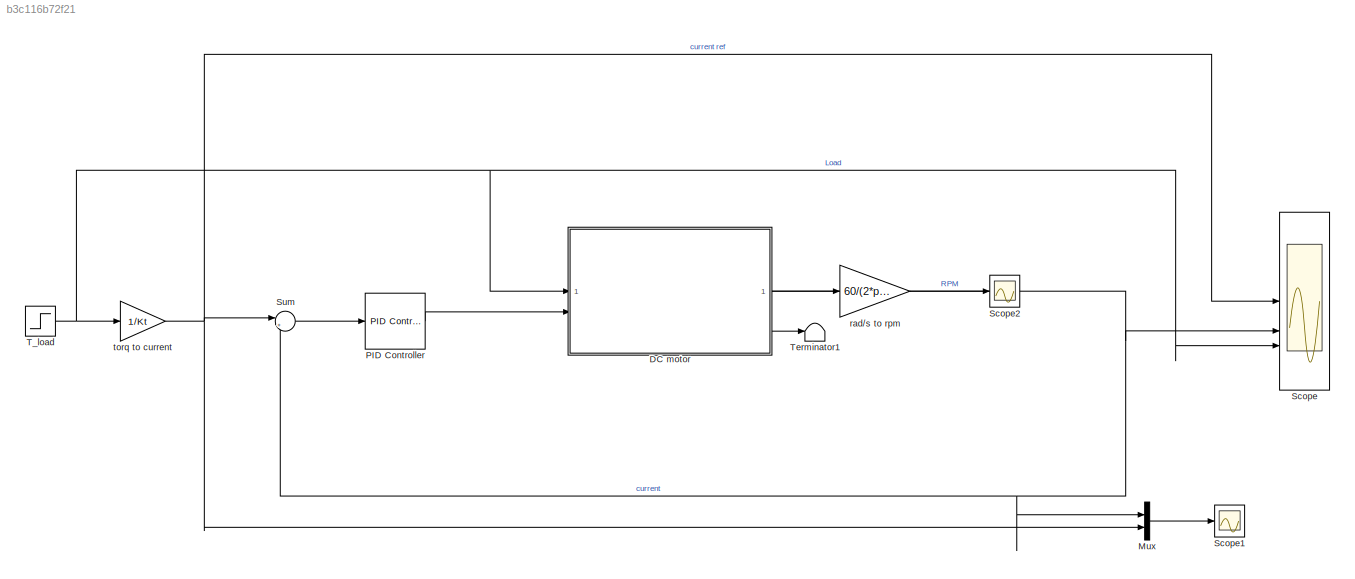
MODEL slx_b3c116b72f21
KIND model
CONFIG AbsTol = auto
CONFIG EnableMultiTasking = off
CONFIG FixedStep = auto
CONFIG MaxStep = auto
CONFIG MinStep = auto
CONFIG RelTol = 1e-3
CONFIG SampleTimeConstraint = Unconstrained
CONFIG SolverName = VariableStepAuto
CONFIG StartTime = 0.0
CONFIG StopTime = 30
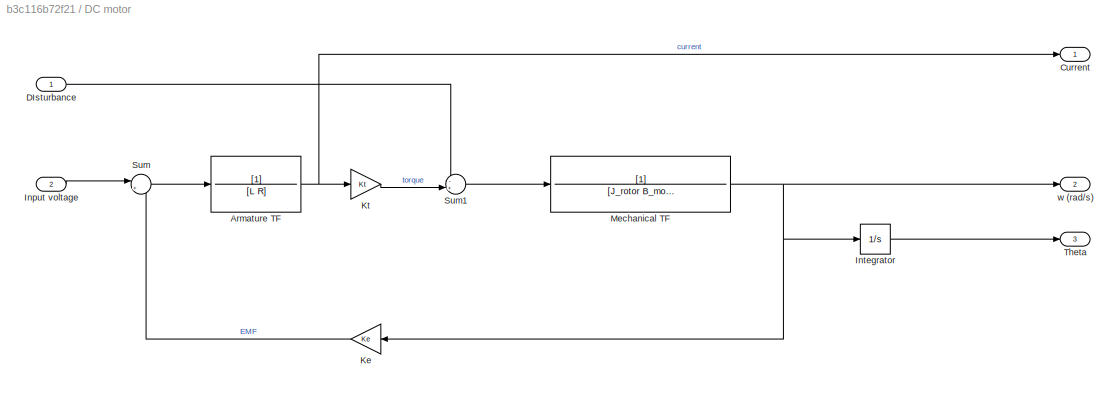
BLOCK [SubSystem] DC motor
BLOCK [TransferFcn] DC motor/Armature TF
  Denominator = [L R]
BLOCK [Outport] DC motor/Current
BLOCK [Inport] DC motor/DIsturbance
BLOCK [Inport] DC motor/Input voltage
  Port = 2
BLOCK [Integrator] DC motor/Integrator
BLOCK [Gain] DC motor/Ke
  Gain = Ke
BLOCK [Gain] DC motor/Kt
  Gain = Kt
BLOCK [TransferFcn] DC motor/Mechanical TF
  Denominator = [J_rotor B_motor]
BLOCK [Sum] DC motor/Sum
  Inputs = |+-
BLOCK [Sum] DC motor/Sum1
  Inputs = -+|
BLOCK [Outport] DC motor/Theta
  Port = 3
BLOCK [Outport] DC motor/w (rad//s)
  Port = 2
BLOCK [Mux] Mux
  DisplayOption = bar
  Inputs = 2
BLOCK [Reference] PID Controller  REF=slpidlib/PID Controller
  LibrarySourceBlock = simulink/Continuous/PID Controller
  SourceBlock = slpidlib/PID Controller
  SourceType = PID 1dof
BLOCK [Scope] Scope
  Floating = off
  NumInputPorts = 3
  ScopeSpecificationString = Simulink.scopes.TimeScopeBlockCfg('CurrentConfiguration', extmgr.ConfigurationSet(extmgr.Configuration('Core','General UI',true),extmgr.Configuration('Core','Source UI',true),extmgr.Configuration('Sources','WiredSimulink',true),extmgr.Configuration('Visuals','Time Domain',true,'SerializedDisplays',{struct('MinYLimReal','-1.5625','MaxYLimReal','14.0625','YLabelReal','I_{ref} (A)','MinYLimMag','0.00...<+2722ch>
BLOCK [Scope] Scope1
  Floating = off
  NumInputPorts = 1
  ScopeSpecificationString = Simulink.scopes.TimeScopeBlockCfg('CurrentConfiguration', extmgr.ConfigurationSet(extmgr.Configuration('Core','General UI',true),extmgr.Configuration('Core','Source UI',true),extmgr.Configuration('Sources','WiredSimulink',true,'DataLoggingVariableName','ScopeData1'),extmgr.Configuration('Visuals','Time Domain',true,'SerializedDisplays',{struct('MinYLimReal','-1.56268','MaxYLimReal','14.0641','YLab...<+1451ch>
BLOCK [Scope] Scope2
  Floating = off
  NumInputPorts = 1
  ScopeSpecificationString = Simulink.scopes.TimeScopeBlockCfg('CurrentConfiguration', extmgr.ConfigurationSet(extmgr.Configuration('Core','General UI',true),extmgr.Configuration('Core','Source UI',true),extmgr.Configuration('Sources','WiredSimulink',true,'DataLoggingVariableName','ScopeData1'),extmgr.Configuration('Visuals','Time Domain',true,'SerializedDisplays',{struct('MinYLimReal','-405.33395','MaxYLimReal','45.08298','Y...<+1399ch>
BLOCK [Sum] Sum
  Inputs = |+-
BLOCK [Step] T_load
  After = T_disturbance
  SampleTime = 0
  Time = 2.5
BLOCK [Terminator] Terminator1
BLOCK [Gain] rad//s to rpm
  Gain = 60/(2*pi)
BLOCK [Gain] torq to current
  Gain = 1/Kt
NET DC motor/Armature TF:1 -> DC motor/Current:1, DC motor/Kt:1
LINE DC motor/DIsturbance:1 -> DC motor/Sum1:1
LINE DC motor/Input voltage:1 -> DC motor/Sum:1
LINE DC motor/Integrator:1 -> DC motor/Theta:1
LINE DC motor/Ke:1 -> DC motor/Sum:2
LINE DC motor/Kt:1 -> DC motor/Sum1:2
NET DC motor/Mechanical TF:1 -> DC motor/Integrator:1, DC motor/Ke:1, DC motor/w (rad//s):1
LINE DC motor/Sum1:1 -> DC motor/Mechanical TF:1
LINE DC motor/Sum:1 -> DC motor/Armature TF:1
NET DC motor:1 -> Mux:1, Scope:2, Sum:2
LINE DC motor:2 -> rad//s to rpm:1
LINE DC motor:3 -> Terminator1:1
LINE Mux:1 -> Scope1:1
LINE PID Controller:1 -> DC motor:2
LINE Sum:1 -> PID Controller:1
NET T_load:1 -> DC motor:1, Scope:3, torq to current:1
LINE rad//s to rpm:1 -> Scope2:1
NET torq to current:1 -> Mux:2, Scope:1, Sum:1
note: NET lines group one-source signal fan-out (src -> all destinations, sorted); 1:1 wires keep LINE
